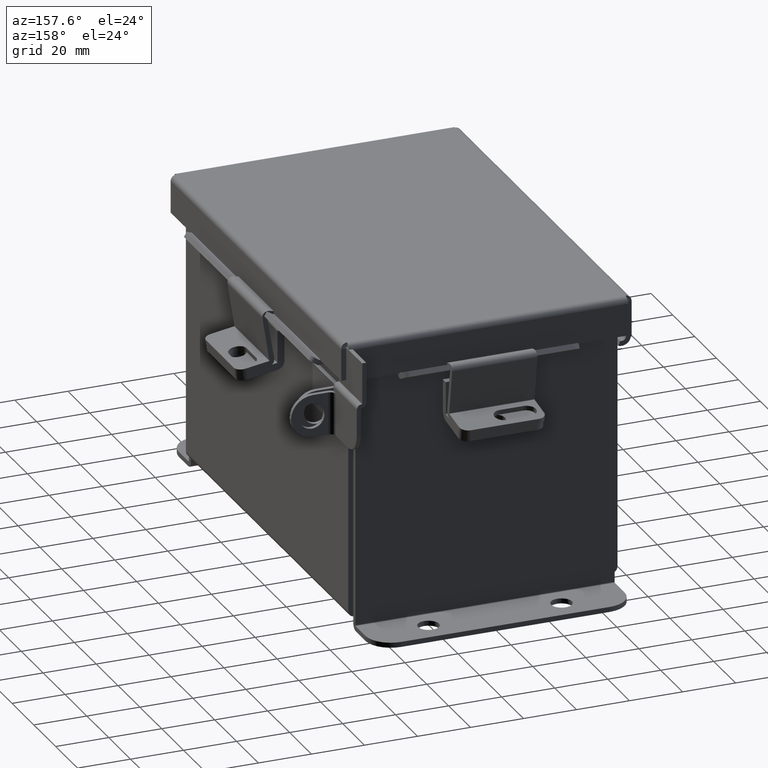
[diagram: clean part render]
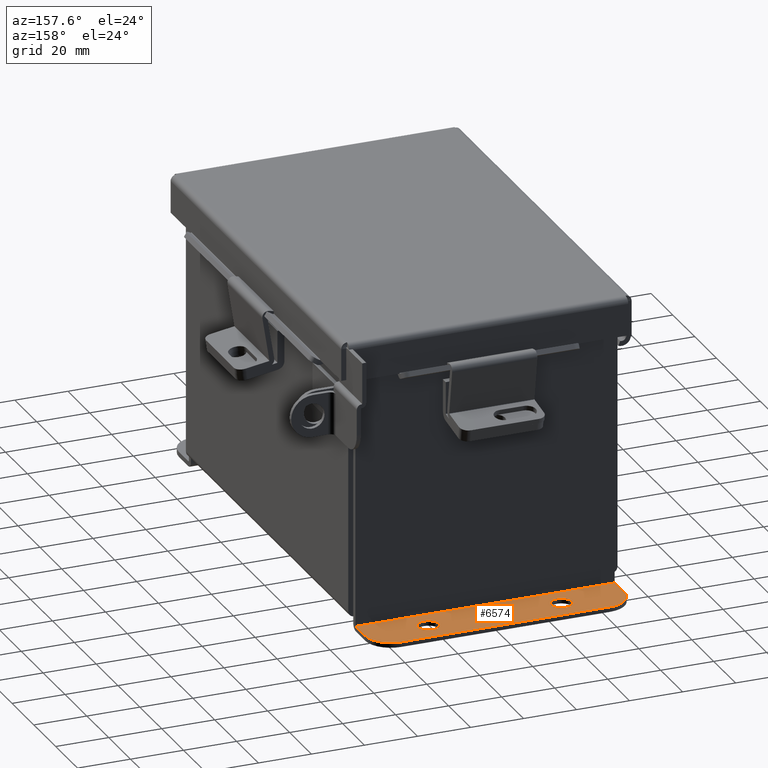
[diagram: same view with one face highlighted and labeled with its STEP entity id]
A machine part, auxiliary view. The second image highlights one B-rep face of the part: STEP entity #6574.
In plain terms, the highlighted planar face has unit normal (0, 0, 1).
Its self-contained STEP definition (entity closure, byte-faithful):
#63 = ORIENTED_EDGE ( 'NONE', *, *, #7696, .F. ) ;
#75 = VERTEX_POINT ( 'NONE', #12900 ) ;
#371 = LINE ( 'NONE', #8891, #8732 ) ;
#545 = DIRECTION ( 'NONE',  ( 0.0000000000000000000, 3.332425039709726500E-015, 1.000000000000000000 ) ) ;
#997 = DIRECTION ( 'NONE',  ( -0.0000000000000000000, -3.332425039709726100E-015, -1.000000000000000000 ) ) ;
#1019 = LINE ( 'NONE', #2280, #3964 ) ;
#1328 = DIRECTION ( 'NONE',  ( -0.0000000000000000000, -3.332425039709726100E-015, -1.000000000000000000 ) ) ;
#1646 = CARTESIAN_POINT ( 'NONE',  ( -1.925300000000000900, 0.3628000000000002900, -2.112300000000000700 ) ) ;
#1660 = DIRECTION ( 'NONE',  ( -0.0000000000000000000, -3.332425039709726100E-015, -1.000000000000000000 ) ) ;
#1750 = CARTESIAN_POINT ( 'NONE',  ( 1.925299999999999800, 0.3628000000000002300, -2.112300000000000700 ) ) ;
#1809 = CIRCLE ( 'NONE', #12061, 0.3750000000000000600 ) ;
#1866 = DIRECTION ( 'NONE',  ( 0.0000000000000000000, 3.332425039709726100E-015, 1.000000000000000000 ) ) ;
#2247 = AXIS2_PLACEMENT_3D ( 'NONE', #8173, #1660, #9259 ) ;
#2280 = CARTESIAN_POINT ( 'NONE',  ( 1.925299999999999800, 0.01299999999999983500, -2.112299999999999800 ) ) ;
#2397 = ORIENTED_EDGE ( 'NONE', *, *, #7126, .T. ) ;
#2596 = CIRCLE ( 'NONE', #5022, 0.3750000000000000600 ) ;
#2942 = FACE_BOUND ( 'NONE', #6905, .T. ) ;
#2962 = CARTESIAN_POINT ( 'NONE',  ( -1.550300000000000200, 0.3628000000000002900, -2.112300000000000700 ) ) ;
#3077 = EDGE_CURVE ( 'NONE', #4378, #9590, #1809, .T. ) ;
#3196 = CARTESIAN_POINT ( 'NONE',  ( -0.9878000000000009000, 0.5188000000000003700, -2.112300000000001200 ) ) ;
#3204 = VERTEX_POINT ( 'NONE', #3196 ) ;
#3274 = FACE_OUTER_BOUND ( 'NONE', #8299, .T. ) ;
#3294 = ORIENTED_EDGE ( 'NONE', *, *, #7383, .F. ) ;
#3676 = CARTESIAN_POINT ( 'NONE',  ( 1.925299999999999800, 0.01299999999999972000, -2.112299999999999800 ) ) ;
#3739 = VERTEX_POINT ( 'NONE', #1750 ) ;
#3840 = VERTEX_POINT ( 'NONE', #6238 ) ;
#3894 = AXIS2_PLACEMENT_3D ( 'NONE', #11396, #545, #8188 ) ;
#3964 = VECTOR ( 'NONE', #7927, 39.37007874015748100 ) ;
#4069 = DIRECTION ( 'NONE',  ( 0.0000000000000000000, -1.000000000000000000, 3.642463991552350200E-015 ) ) ;
#4133 = LINE ( 'NONE', #9147, #12414 ) ;
#4184 = CIRCLE ( 'NONE', #12875, 0.1560000000000001700 ) ;
#4378 = VERTEX_POINT ( 'NONE', #8107 ) ;
#4716 = EDGE_CURVE ( 'NONE', #5684, #8763, #4184, .T. ) ;
#4828 = CARTESIAN_POINT ( 'NONE',  ( 0.9877999999999997900, 0.2067999999999999800, -2.112300000000000300 ) ) ;
#4863 = EDGE_CURVE ( 'NONE', #75, #3204, #7890, .T. ) ;
#5022 = AXIS2_PLACEMENT_3D ( 'NONE', #8383, #1866, #9464 ) ;
#5417 = VERTEX_POINT ( 'NONE', #3676 ) ;
#5421 = DIRECTION ( 'NONE',  ( -0.0000000000000000000, 1.000000000000000000, -3.332425039709726500E-015 ) ) ;
#5684 = VERTEX_POINT ( 'NONE', #13780 ) ;
#5841 = FACE_BOUND ( 'NONE', #7073, .T. ) ;
#5888 = CARTESIAN_POINT ( 'NONE',  ( -0.9878000000000009000, 0.3628000000000001800, -2.112300000000000700 ) ) ;
#6044 = EDGE_CURVE ( 'NONE', #3204, #75, #8713, .T. ) ;
#6238 = CARTESIAN_POINT ( 'NONE',  ( -1.925300000000000900, 0.01299999999999940400, -2.112299999999999800 ) ) ;
#6574 = ADVANCED_FACE ( 'NONE', ( #2942, #5841, #3274 ), #7107, .T. ) ;
#6655 = EDGE_CURVE ( 'NONE', #3739, #7639, #2596, .T. ) ;
#6905 = EDGE_LOOP ( 'NONE', ( #11626, #8433 ) ) ;
#6935 = CARTESIAN_POINT ( 'NONE',  ( 1.550299999999999800, 0.7378000000000002300, -2.112300000000002100 ) ) ;
#6976 = DIRECTION ( 'NONE',  ( 0.0000000000000000000, -1.000000000000000000, 3.502369222646487400E-015 ) ) ;
#6999 = EDGE_CURVE ( 'NONE', #5417, #3840, #1019, .T. ) ;
#7073 = EDGE_LOOP ( 'NONE', ( #12656, #2397 ) ) ;
#7107 = PLANE ( 'NONE',  #3894 ) ;
#7115 = ORIENTED_EDGE ( 'NONE', *, *, #3077, .T. ) ;
#7126 = EDGE_CURVE ( 'NONE', #8763, #5684, #11224, .T. ) ;
#7383 = EDGE_CURVE ( 'NONE', #3840, #9590, #13913, .T. ) ;
#7515 = CARTESIAN_POINT ( 'NONE',  ( 0.9877999999999997900, 0.3628000000000001800, -2.112300000000000700 ) ) ;
#7639 = VERTEX_POINT ( 'NONE', #6935 ) ;
#7696 = EDGE_CURVE ( 'NONE', #4378, #7639, #4133, .T. ) ;
#7841 = CARTESIAN_POINT ( 'NONE',  ( -0.9878000000000009000, 0.3628000000000001800, -2.112300000000000700 ) ) ;
#7890 = CIRCLE ( 'NONE', #10963, 0.1560000000000001700 ) ;
#7927 = DIRECTION ( 'NONE',  ( -1.000000000000000000, -7.094603421971284000E-017, 2.364223409018741400E-031 ) ) ;
#8107 = CARTESIAN_POINT ( 'NONE',  ( -1.550300000000000200, 0.7378000000000002300, -2.112300000000002100 ) ) ;
#8173 = CARTESIAN_POINT ( 'NONE',  ( 0.9877999999999997900, 0.3628000000000001800, -2.112300000000000700 ) ) ;
#8188 = DIRECTION ( 'NONE',  ( 0.0000000000000000000, -1.000000000000000000, 3.332425039709726500E-015 ) ) ;
#8299 = EDGE_LOOP ( 'NONE', ( #12393, #9971, #63, #7115, #3294, #13988 ) ) ;
#8383 = CARTESIAN_POINT ( 'NONE',  ( 1.550299999999999800, 0.3628000000000002300, -2.112300000000000700 ) ) ;
#8433 = ORIENTED_EDGE ( 'NONE', *, *, #4863, .T. ) ;
#8608 = DIRECTION ( 'NONE',  ( 0.0000000000000000000, -1.000000000000000000, 3.502369222646487400E-015 ) ) ;
#8713 = CIRCLE ( 'NONE', #9510, 0.1560000000000001700 ) ;
#8732 = VECTOR ( 'NONE', #9991, 39.37007874015748100 ) ;
#8763 = VERTEX_POINT ( 'NONE', #4828 ) ;
#8891 = CARTESIAN_POINT ( 'NONE',  ( 1.925299999999999800, -1.188150554526585500E-017, -2.112299999999999800 ) ) ;
#8933 = DIRECTION ( 'NONE',  ( 0.0000000000000000000, -1.000000000000000000, 3.502369222646487400E-015 ) ) ;
#9147 = CARTESIAN_POINT ( 'NONE',  ( 1.925299999999999800, 0.7378000000000002300, -2.112300000000002100 ) ) ;
#9259 = DIRECTION ( 'NONE',  ( 0.0000000000000000000, -1.000000000000000000, 3.502369222646487400E-015 ) ) ;
#9464 = DIRECTION ( 'NONE',  ( 0.0000000000000000000, -1.000000000000000000, 3.642463991552350200E-015 ) ) ;
#9510 = AXIS2_PLACEMENT_3D ( 'NONE', #5888, #13440, #6976 ) ;
#9590 = VERTEX_POINT ( 'NONE', #1646 ) ;
#9971 = ORIENTED_EDGE ( 'NONE', *, *, #6655, .T. ) ;
#9991 = DIRECTION ( 'NONE',  ( -0.0000000000000000000, -1.000000000000000000, 3.332425039709726500E-015 ) ) ;
#10554 = DIRECTION ( 'NONE',  ( 0.0000000000000000000, 3.332425039709726100E-015, 1.000000000000000000 ) ) ;
#10963 = AXIS2_PLACEMENT_3D ( 'NONE', #7841, #1328, #8933 ) ;
#11224 = CIRCLE ( 'NONE', #2247, 0.1560000000000001700 ) ;
#11396 = CARTESIAN_POINT ( 'NONE',  ( 0.0000000000000000000, -6.415917928953134900E-015, -2.112299999999999800 ) ) ;
#11626 = ORIENTED_EDGE ( 'NONE', *, *, #6044, .T. ) ;
#12061 = AXIS2_PLACEMENT_3D ( 'NONE', #2962, #10554, #4069 ) ;
#12393 = ORIENTED_EDGE ( 'NONE', *, *, #13813, .F. ) ;
#12402 = DIRECTION ( 'NONE',  ( 1.000000000000000000, -0.0000000000000000000, -0.0000000000000000000 ) ) ;
#12414 = VECTOR ( 'NONE', #12402, 39.37007874015748100 ) ;
#12656 = ORIENTED_EDGE ( 'NONE', *, *, #4716, .T. ) ;
#12875 = AXIS2_PLACEMENT_3D ( 'NONE', #7515, #997, #8608 ) ;
#12900 = CARTESIAN_POINT ( 'NONE',  ( -0.9878000000000009000, 0.2067999999999999800, -2.112300000000000300 ) ) ;
#13440 = DIRECTION ( 'NONE',  ( -0.0000000000000000000, -3.332425039709726100E-015, -1.000000000000000000 ) ) ;
#13589 = VECTOR ( 'NONE', #5421, 39.37007874015748100 ) ;
#13780 = CARTESIAN_POINT ( 'NONE',  ( 0.9877999999999997900, 0.5188000000000003700, -2.112300000000001200 ) ) ;
#13813 = EDGE_CURVE ( 'NONE', #3739, #5417, #371, .T. ) ;
#13913 = LINE ( 'NONE', #14051, #13589 ) ;
#13988 = ORIENTED_EDGE ( 'NONE', *, *, #6999, .F. ) ;
#14051 = CARTESIAN_POINT ( 'NONE',  ( -1.925300000000000900, 0.7378000000000002300, -2.112300000000002100 ) ) ;